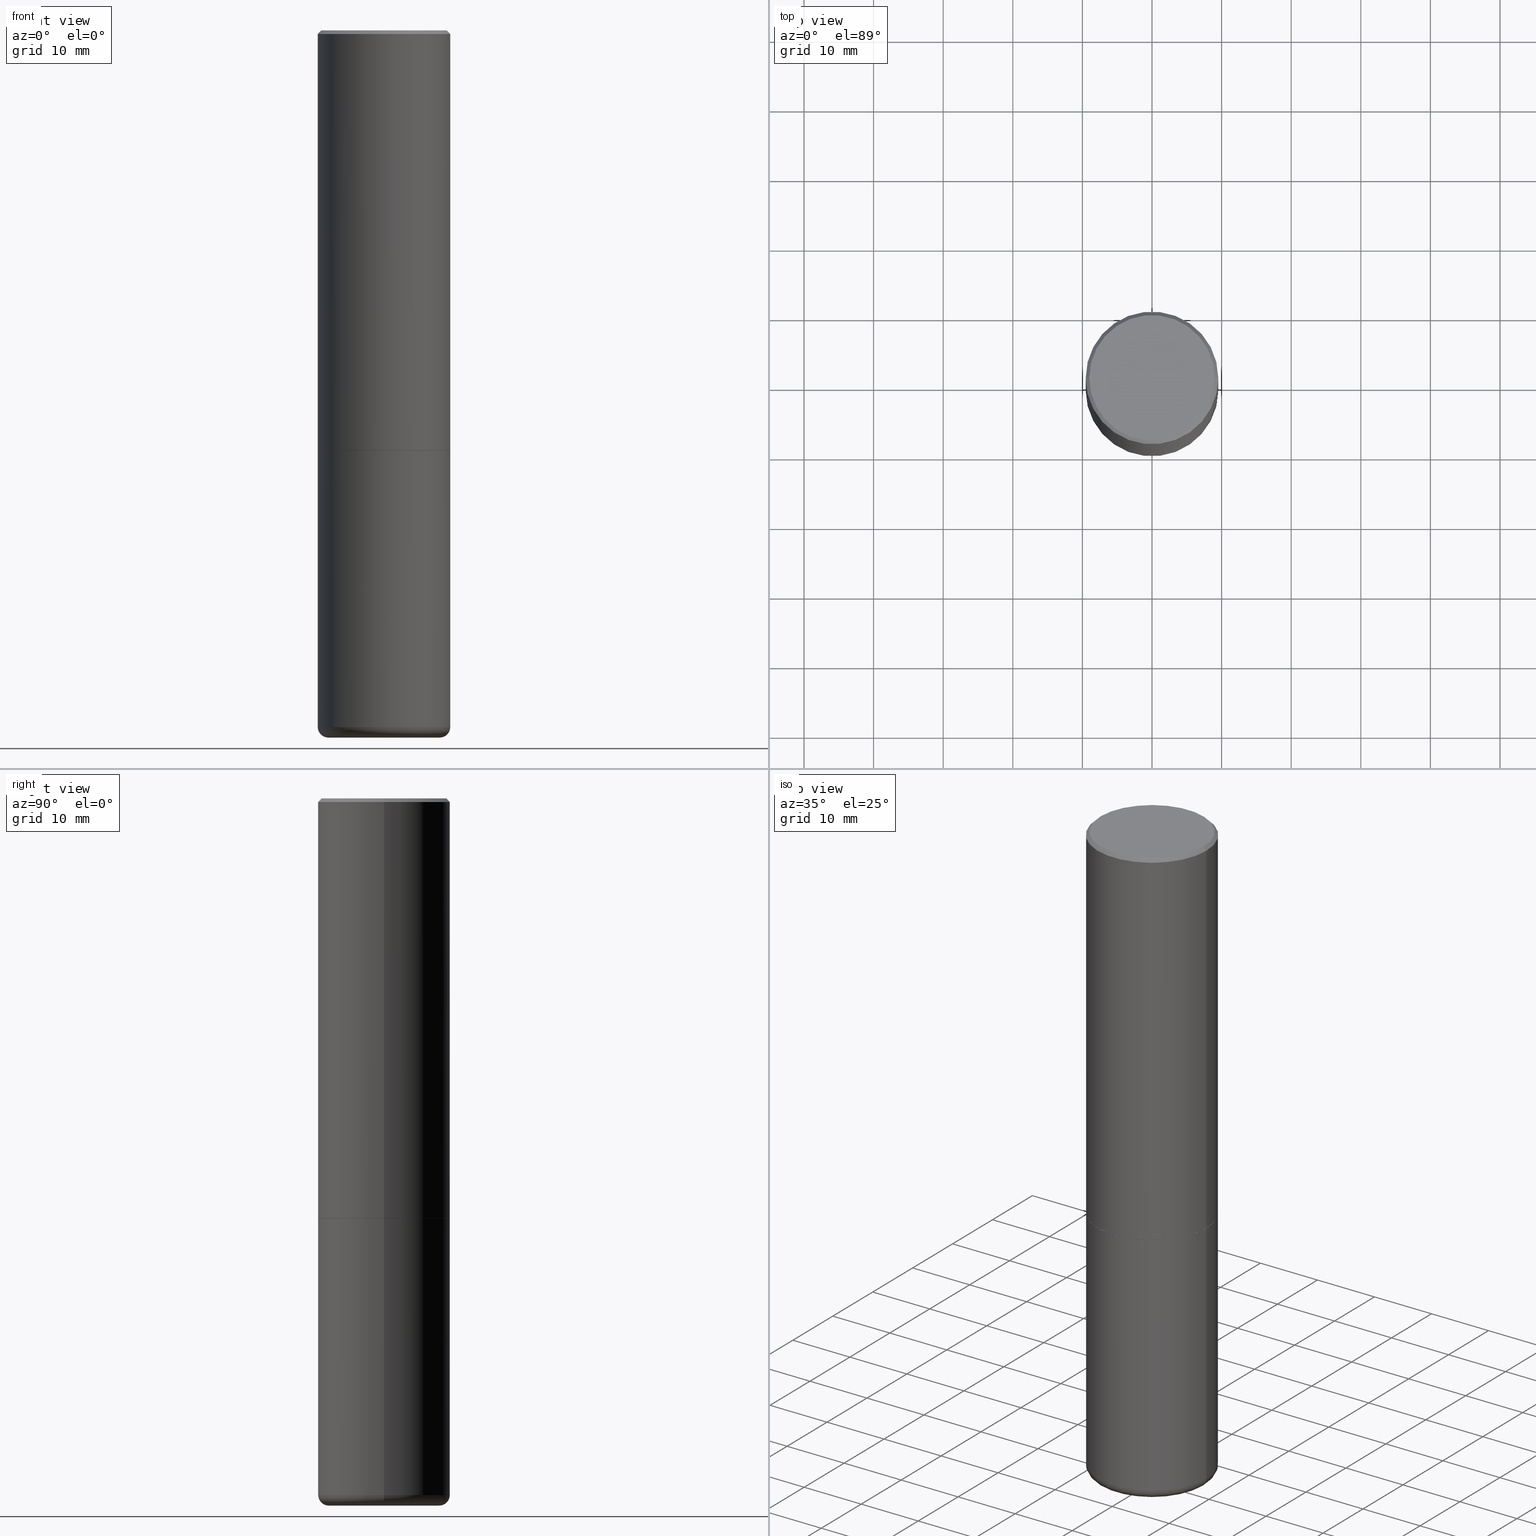
[diagram: canonical four-view strip — front | top / right | iso, engineering-drawing reading convention]
A machine part, canonical four-view strip (front | top / right | iso — engineering-drawing reading convention). The complete STEP part file that produces these views, byte-faithful:
ISO-10303-21;
HEADER;
FILE_DESCRIPTION (( 'STEP AP203' ),
    '1' );
FILE_NAME ('32585.STEP',
    '2022-04-26T19:38:53',
    ( '' ),
    ( '' ),
    'SwSTEP 2.0',
    'SolidWorks 2022',
    '' );
FILE_SCHEMA (( 'CONFIG_CONTROL_DESIGN' ));
ENDSEC;

DATA;
#1 = FACE_OUTER_BOUND ( 'NONE', #268, .T. ) ;
#2 = COORDINATED_UNIVERSAL_TIME_OFFSET ( 5, 0, .BEHIND. ) ;
#3 = DIRECTION ( 'NONE',  ( 1.000000000000000000, -6.982962677686266711E-15, 4.876176775795935793E-29 ) ) ;
#4 = CARTESIAN_POINT ( 'NONE',  ( 0.3139528556137644033, -1.611976638653431424E-14, -3.999990861709384227 ) ) ;
#5 = CARTESIAN_POINT ( 'NONE',  ( -0.3750000000000000555, -1.514767903494867141E-15, -2.373999999999999666 ) ) ;
#6 = EDGE_LOOP ( 'NONE', ( #191, #306, #263, #41 ) ) ;
#7 = CIRCLE ( 'NONE', #271, 0.3739999999999999991 ) ;
#8 = ADVANCED_FACE ( 'NONE', ( #274 ), #442, .T. ) ;
#9 = AXIS2_PLACEMENT_3D ( 'NONE', #178, #323, #290 ) ;
#10 = LINE ( 'NONE', #217, #375 ) ;
#11 = ORIENTED_EDGE ( 'NONE', *, *, #394, .F. ) ;
#12 = CARTESIAN_POINT ( 'NONE',  ( 0.3150000000000000577, -1.595606971851316740E-14, -3.939999999999999947 ) ) ;
#13 = CARTESIAN_POINT ( 'NONE',  ( -0.3749999999999998890, 2.664535259100374908E-15, -1.844600658845589038E-29 ) ) ;
#14 = CARTESIAN_POINT ( 'NONE',  ( 0.3750000000000000555, -1.090738770254597870E-14, -2.373999999999999666 ) ) ;
#15 = VERTEX_POINT ( 'NONE', #14 ) ;
#16 = VECTOR ( 'NONE', #318, 39.37007874015748143 ) ;
#17 = CARTESIAN_POINT ( 'NONE',  ( -0.3150000000000000577, -1.151822685739767881E-14, -3.939999999999999947 ) ) ;
#18 = ORIENTED_EDGE ( 'NONE', *, *, #125, .T. ) ;
#19 = DIRECTION ( 'NONE',  ( 0.7071067811864267805, -2.468850131080992517E-15, 0.7071067811866682540 ) ) ;
#20 = ORIENTED_EDGE ( 'NONE', *, *, #394, .T. ) ;
#21 = EDGE_LOOP ( 'NONE', ( #26, #334, #308 ) ) ;
#22 = VERTEX_POINT ( 'NONE', #54 ) ;
#23 = CARTESIAN_POINT ( 'NONE',  ( 4.890937612370293302E-31, -6.982962677686318726E-17, -0.02000000000000008021 ) ) ;
#24 = ORIENTED_EDGE ( 'NONE', *, *, #181, .F. ) ;
#25 = AXIS2_PLACEMENT_3D ( 'NONE', #220, #360, #352 ) ;
#26 = ORIENTED_EDGE ( 'NONE', *, *, #250, .F. ) ;
#27 = AXIS2_PLACEMENT_3D ( 'NONE', #165, #52, #85 ) ;
#28 = VERTEX_POINT ( 'NONE', #115 ) ;
#29 = VERTEX_POINT ( 'NONE', #152 ) ;
#30 = EDGE_CURVE ( 'NONE', #350, #402, #331, .T. ) ;
#31 = CARTESIAN_POINT ( 'NONE',  ( 5.807988414689700538E-29, -8.292268179752471696E-15, -2.375000000000000000 ) ) ;
#32 = APPROVAL_DATE_TIME ( #48, #332 ) ;
#33 = DIRECTION ( 'NONE',  ( 1.000000000000000000, -6.982962677686268288E-15, 0.000000000000000000 ) ) ;
#34 = CARTESIAN_POINT ( 'NONE',  ( 0.3750000000000002220, -2.618611004132351594E-15, 1.828566290923477043E-29 ) ) ;
#35 = PERSON_AND_ORGANIZATION_ROLE ( 'creator' ) ;
#36 = EDGE_CURVE ( 'NONE', #434, #163, #226, .T. ) ;
#37 = ADVANCED_FACE ( 'NONE', ( #396 ), #218, .T. ) ;
#38 = DIRECTION ( 'NONE',  ( -1.000000000000000000, 6.982962677686265922E-15, 0.000000000000000000 ) ) ;
#39 = EDGE_LOOP ( 'NONE', ( #51, #429, #96, #188 ) ) ;
#40 = FACE_OUTER_BOUND ( 'NONE', #254, .T. ) ;
#41 = ORIENTED_EDGE ( 'NONE', *, *, #203, .F. ) ;
#42 = AXIS2_PLACEMENT_3D ( 'NONE', #368, #400, #329 ) ;
#43 = CARTESIAN_POINT ( 'NONE',  ( 0.3739999999999999991, -1.090389622120713570E-14, -2.375000000000000000 ) ) ;
#44 = DIRECTION ( 'NONE',  ( -2.445468806185136597E-29, 3.491481338843145583E-15, 1.000000000000000000 ) ) ;
#45 = FACE_OUTER_BOUND ( 'NONE', #427, .T. ) ;
#46 = DIMENSIONAL_EXPONENTS ( 1.000000000000000000, 0.000000000000000000, 0.000000000000000000, 0.000000000000000000, 0.000000000000000000, 0.000000000000000000, 0.000000000000000000 ) ;
#47 = DIRECTION ( 'NONE',  ( -6.982962677686266711E-15, -1.000000000000000000, 3.491481338843145583E-15 ) ) ;
#48 = DATE_AND_TIME ( #287, #171 ) ;
#49 = PERSON_AND_ORGANIZATION ( #242, #101 ) ;
#50 = FACE_OUTER_BOUND ( 'NONE', #63, .T. ) ;
#51 = ORIENTED_EDGE ( 'NONE', *, *, #278, .T. ) ;
#52 = DIRECTION ( 'NONE',  ( -2.445468806185136597E-29, 3.491481338843145583E-15, 1.000000000000000000 ) ) ;
#53 = CIRCLE ( 'NONE', #310, 0.3549999999999997602 ) ;
#54 = CARTESIAN_POINT ( 'NONE',  ( -0.3549999999999997602, 2.513866563967053491E-15, 4.268512490082953109E-18 ) ) ;
#55 = CARTESIAN_POINT ( 'NONE',  ( 1.060467509993676374E-27, -1.514066551259075377E-13, -43.36458953438772568 ) ) ;
#56 = ORIENTED_EDGE ( 'NONE', *, *, #159, .F. ) ;
#57 = ADVANCED_FACE ( 'NONE', ( #223 ), #161, .T. ) ;
#58 = EDGE_CURVE ( 'NONE', #385, #327, #91, .T. ) ;
#59 = ORIENTED_EDGE ( 'NONE', *, *, #58, .F. ) ;
#60 = FACE_OUTER_BOUND ( 'NONE', #235, .T. ) ;
#61 = ORIENTED_EDGE ( 'NONE', *, *, #404, .F. ) ;
#62 = APPLICATION_CONTEXT ( 'configuration controlled 3d designs of mechanical parts and assemblies' ) ;
#63 = EDGE_LOOP ( 'NONE', ( #433, #83, #297, #59 ) ) ;
#64 = ORIENTED_EDGE ( 'NONE', *, *, #315, .T. ) ;
#65 = AXIS2_PLACEMENT_3D ( 'NONE', #316, #174, #3 ) ;
#66 = PRODUCT_DEFINITION_SHAPE ( 'NONE', 'NONE',  #313 ) ;
#67 = DIRECTION ( 'NONE',  ( 1.000000000000000000, -6.982962677686265133E-15, 0.000000000000000000 ) ) ;
#68 = LINE ( 'NONE', #247, #192 ) ;
#69 = LOCAL_TIME ( 15, 38, 53.00000000000000000, #119 ) ;
#70 = ADVANCED_FACE ( 'NONE', ( #60 ), #147, .T. ) ;
#71 = ADVANCED_FACE ( 'NONE', ( #199 ), #330, .F. ) ;
#72 = CALENDAR_DATE ( 2022, 26, 4 ) ;
#73 = DIRECTION ( 'NONE',  ( -2.445468806185136597E-29, 3.491481338843145583E-15, 1.000000000000000000 ) ) ;
#74 = VERTEX_POINT ( 'NONE', #269 ) ;
#75 = PLANE ( 'NONE',  #9 ) ;
#76 = APPLICATION_CONTEXT ( 'configuration controlled 3d designs of mechanical parts and assemblies' ) ;
#77 = EDGE_LOOP ( 'NONE', ( #307, #64 ) ) ;
#78 = CIRCLE ( 'NONE', #166, 0.3750000000000003886 ) ;
#79 = CARTESIAN_POINT ( 'NONE',  ( -0.3750000000000000555, -8.359817068296855580E-15, -2.375000000000000000 ) ) ;
#80 = PERSON_AND_ORGANIZATION ( #242, #101 ) ;
#81 = DIRECTION ( 'NONE',  ( -2.445468806185136877E-29, 3.491481338843145188E-15, 1.000000000000000000 ) ) ;
#82 = DIRECTION ( 'NONE',  ( -2.445468806185136597E-29, 3.491481338843145583E-15, 1.000000000000000000 ) ) ;
#83 = ORIENTED_EDGE ( 'NONE', *, *, #95, .T. ) ;
#84 = CARTESIAN_POINT ( 'NONE',  ( 9.635147096369438236E-29, -1.375643647504199401E-14, -3.939999999999999947 ) ) ;
#85 = DIRECTION ( 'NONE',  ( 1.000000000000000000, -6.982962677686266711E-15, 4.883557194083113462E-29 ) ) ;
#86 = DIRECTION ( 'NONE',  ( 1.000000000000000000, 0.000000000000000000, 0.000000000000000000 ) ) ;
#87 = CARTESIAN_POINT ( 'NONE',  ( 9.635147096369438236E-29, -1.375643647504199401E-14, -3.939999999999999947 ) ) ;
#88 = LENGTH_MEASURE_WITH_UNIT ( LENGTH_MEASURE( 0.02539999999999999897 ), #393 );
#89 = DIRECTION ( 'NONE',  ( -2.445468806185136597E-29, 3.491481338843145583E-15, 1.000000000000000000 ) ) ;
#90 = ORIENTED_EDGE ( 'NONE', *, *, #58, .T. ) ;
#91 = CIRCLE ( 'NONE', #435, 0.06000000000000031697 ) ;
#92 = APPROVAL_PERSON_ORGANIZATION ( #244, #332, #389 ) ;
#93 = CARTESIAN_POINT ( 'NONE',  ( 2.478951750578623026E-15, 0.3549999999999997602, -1.237341619044265638E-15 ) ) ;
#94 = ADVANCED_FACE ( 'NONE', ( #196 ), #230, .T. ) ;
#95 = EDGE_CURVE ( 'NONE', #163, #167, #142, .T. ) ;
#96 = ORIENTED_EDGE ( 'NONE', *, *, #416, .F. ) ;
#97 = EDGE_LOOP ( 'NONE', ( #270, #354, #225, #335 ) ) ;
#98 = VERTEX_POINT ( 'NONE', #388 ) ;
#99 = ORIENTED_EDGE ( 'NONE', *, *, #172, .F. ) ;
#100 = CC_DESIGN_PERSON_AND_ORGANIZATION_ASSIGNMENT ( #417, #112, ( #179 ) ) ;
#101 = ORGANIZATION ( 'UNSPECIFIED', 'UNSPECIFIED', '' ) ;
#102 = DIRECTION ( 'NONE',  ( 1.000000000000000000, -6.982962677686268288E-15, 0.000000000000000000 ) ) ;
#103 = ADVANCED_FACE ( 'NONE', ( #362 ), #397, .F. ) ;
#104 = CIRCLE ( 'NONE', #387, 0.3750000000000000555 ) ;
#105 = DIRECTION ( 'NONE',  ( -2.445468806185136597E-29, 3.491481338843145583E-15, 1.000000000000000000 ) ) ;
#106 = LOCAL_TIME ( 15, 38, 53.00000000000000000, #2 ) ;
#107 = CIRCLE ( 'NONE', #439, 0.3139528556137635151 ) ;
#108 = PERSON_AND_ORGANIZATION_ROLE ( 'creator' ) ;
#109 = DATE_TIME_ROLE ( 'classification_date' ) ;
#110 = CARTESIAN_POINT ( 'NONE',  ( 0.3750000000000003886, -1.637504747917434719E-14, -3.939999999999999947 ) ) ;
#111 = ORIENTED_EDGE ( 'NONE', *, *, #95, .F. ) ;
#112 = PERSON_AND_ORGANIZATION_ROLE ( 'classification_officer' ) ;
#113 = CARTESIAN_POINT ( 'NONE',  ( -0.3750000000000002220, 2.664535259100377275E-15, -1.844600658845590719E-29 ) ) ;
#114 = CARTESIAN_POINT ( 'NONE',  ( 5.807988414689700538E-29, -8.292268179752471696E-15, -2.375000000000000000 ) ) ;
#115 = CARTESIAN_POINT ( 'NONE',  ( -0.3749999999999997780, 2.548781377355484746E-15, -0.02000000000000008021 ) ) ;
#116 = PERSON_AND_ORGANIZATION_ROLE ( 'design_owner' ) ;
#117 = DIRECTION ( 'NONE',  ( 2.445468806185136597E-29, -3.491481338843145583E-15, -1.000000000000000000 ) ) ;
#118 = DIRECTION ( 'NONE',  ( 1.000000000000000000, -6.982962677686266711E-15, 4.876176775795935793E-29 ) ) ;
#119 = COORDINATED_UNIVERSAL_TIME_OFFSET ( 5, 0, .BEHIND. ) ;
#120 = DIRECTION ( 'NONE',  ( 1.000000000000000000, -6.982962677686266711E-15, 0.000000000000000000 ) ) ;
#121 = VERTEX_POINT ( 'NONE', #79 ) ;
#122 = DIRECTION ( 'NONE',  ( 1.000000000000000000, -6.982962677686265922E-15, 0.000000000000000000 ) ) ;
#123 = DIRECTION ( 'NONE',  ( 0.7071067811865459074, -7.319954787623251312E-15, -0.7071067811865492381 ) ) ;
#124 =( CONVERSION_BASED_UNIT ( 'INCH', #88 ) LENGTH_UNIT ( ) NAMED_UNIT ( #46 ) );
#125 = EDGE_CURVE ( 'NONE', #74, #162, #298, .T. ) ;
#126 = DIRECTION ( 'NONE',  ( 7.105427357601001859E-15, 1.000000000000000000, -3.491481338843145583E-15 ) ) ;
#127 = CONICAL_SURFACE ( 'NONE', #134, 0.3749999999999997780, 0.7853981633974459475 ) ;
#128 = DIRECTION ( 'NONE',  ( 1.000000000000000000, -6.982962677686263555E-15, 0.000000000000000000 ) ) ;
#129 = ORIENTED_EDGE ( 'NONE', *, *, #172, .T. ) ;
#130 = PRODUCT ( '32585', '32585', '', ( #363 ) ) ;
#131 = VECTOR ( 'NONE', #421, 39.37007874015748143 ) ;
#132 = CLOSED_SHELL ( 'NONE', ( #190, #311, #103, #367, #37, #57, #438 ) ) ;
#133 = EDGE_CURVE ( 'NONE', #28, #162, #139, .T. ) ;
#134 = AXIS2_PLACEMENT_3D ( 'NONE', #384, #117, #293 ) ;
#135 = APPROVAL_ROLE ( '' ) ;
#136 = FACE_OUTER_BOUND ( 'NONE', #39, .T. ) ;
#137 = DIRECTION ( 'NONE',  ( -2.445468806185136597E-29, 3.491481338843145583E-15, 1.000000000000000000 ) ) ;
#138 = CALENDAR_DATE ( 2022, 26, 4 ) ;
#139 = CIRCLE ( 'NONE', #341, 0.3749999999999997780 ) ;
#140 = CC_DESIGN_SECURITY_CLASSIFICATION ( #179, ( #441 ) ) ;
#141 = ORIENTED_EDGE ( 'NONE', *, *, #326, .F. ) ;
#142 = CIRCLE ( 'NONE', #285, 0.06000000000000031697 ) ;
#143 = SECURITY_CLASSIFICATION_LEVEL ( 'unclassified' ) ;
#144 = LINE ( 'NONE', #113, #431 ) ;
#145 = CARTESIAN_POINT ( 'NONE',  ( 4.890937612370293302E-31, -6.982962677686318726E-17, -0.02000000000000008021 ) ) ;
#146 = CC_DESIGN_DATE_AND_TIME_ASSIGNMENT ( #177, #355, ( #313 ) ) ;
#147 = CYLINDRICAL_SURFACE ( 'NONE', #246, 0.3749999999999998890 ) ;
#148 = APPROVAL_STATUS ( 'not_yet_approved' ) ;
#149 = APPLICATION_PROTOCOL_DEFINITION ( 'international standard', 'config_control_design', 1994, #76 ) ;
#150 = DIRECTION ( 'NONE',  ( 1.000000000000000000, -6.982962677686265133E-15, 0.000000000000000000 ) ) ;
#151 = DIRECTION ( 'NONE',  ( 1.000000000000000000, -6.982962677686268288E-15, 0.000000000000000000 ) ) ;
#152 = CARTESIAN_POINT ( 'NONE',  ( 0.3739999999999999991, -1.090389622120713570E-14, -2.375000000000000000 ) ) ;
#153 = APPLICATION_PROTOCOL_DEFINITION ( 'international standard', 'config_control_design', 1994, #62 ) ;
#154 = DIRECTION ( 'NONE',  ( 2.445468806185136597E-29, -3.491481338843145583E-15, -1.000000000000000000 ) ) ;
#155 = AXIS2_PLACEMENT_3D ( 'NONE', #114, #73, #294 ) ;
#156 = DIRECTION ( 'NONE',  ( 2.445468806185136597E-29, -3.491481338843145583E-15, -1.000000000000000000 ) ) ;
#157 = ORIENTED_EDGE ( 'NONE', *, *, #159, .T. ) ;
#158 = CC_DESIGN_PERSON_AND_ORGANIZATION_ASSIGNMENT ( #185, #108, ( #441 ) ) ;
#159 = EDGE_CURVE ( 'NONE', #29, #350, #413, .T. ) ;
#160 = CARTESIAN_POINT ( 'NONE',  ( 9.768309151834167291E-29, -1.394696380848847214E-14, -3.994510794230248685 ) ) ;
#161 = CYLINDRICAL_SURFACE ( 'NONE', #343, 0.3750000000000002220 ) ;
#162 = VERTEX_POINT ( 'NONE', #411 ) ;
#163 = VERTEX_POINT ( 'NONE', #245 ) ;
#164 =( NAMED_UNIT ( * ) PLANE_ANGLE_UNIT ( ) SI_UNIT ( $, .RADIAN. ) );
#165 = CARTESIAN_POINT ( 'NONE',  ( 9.635147096369438236E-29, -1.375643647504199401E-14, -3.939999999999999947 ) ) ;
#166 = AXIS2_PLACEMENT_3D ( 'NONE', #357, #44, #325 ) ;
#167 = VERTEX_POINT ( 'NONE', #210 ) ;
#168 = ORIENTED_EDGE ( 'NONE', *, *, #301, .T. ) ;
#169 = ORIENTED_EDGE ( 'NONE', *, *, #36, .F. ) ;
#170 = AXIS2_PLACEMENT_3D ( 'NONE', #428, #423, #118 ) ;
#171 = LOCAL_TIME ( 15, 38, 53.00000000000000000, #317 ) ;
#172 = EDGE_CURVE ( 'NONE', #74, #22, #53, .T. ) ;
#173 = CIRCLE ( 'NONE', #42, 0.3750000000000000555 ) ;
#174 = DIRECTION ( 'NONE',  ( -2.445468806185136597E-29, 3.491481338843145583E-15, 1.000000000000000000 ) ) ;
#175 = DIRECTION ( 'NONE',  ( -2.445468806185136877E-29, 3.491481338843145188E-15, 1.000000000000000000 ) ) ;
#176 = CARTESIAN_POINT ( 'NONE',  ( -0.3749999999999997780, 2.548781377355484746E-15, -0.02000000000000008021 ) ) ;
#177 = DATE_AND_TIME ( #138, #376 ) ;
#178 = CARTESIAN_POINT ( 'NONE',  ( 5.807988414689700538E-29, -8.292268179752471696E-15, -2.375000000000000000 ) ) ;
#179 = SECURITY_CLASSIFICATION ( '', '', #143 ) ;
#180 = ORIENTED_EDGE ( 'NONE', *, *, #374, .T. ) ;
#181 = EDGE_CURVE ( 'NONE', #350, #29, #7, .T. ) ;
#182 = CALENDAR_DATE ( 2022, 26, 4 ) ;
#183 = LINE ( 'NONE', #13, #409 ) ;
#184 = DIRECTION ( 'NONE',  ( 2.445468806185136597E-29, -3.491481338843145583E-15, -1.000000000000000000 ) ) ;
#185 = PERSON_AND_ORGANIZATION ( #242, #101 ) ;
#186 = APPROVAL_ROLE ( '' ) ;
#187 = DIRECTION ( 'NONE',  ( 1.000000000000000000, -6.982962677686266711E-15, 4.883557194083113462E-29 ) ) ;
#188 = ORIENTED_EDGE ( 'NONE', *, *, #374, .F. ) ;
#189 = DIRECTION ( 'NONE',  ( 2.438088387897960049E-29, -3.491481338843145188E-15, -1.000000000000000000 ) ) ;
#190 = ADVANCED_FACE ( 'NONE', ( #136 ), #243, .T. ) ;
#191 = ORIENTED_EDGE ( 'NONE', *, *, #30, .F. ) ;
#192 = VECTOR ( 'NONE', #412, 39.37007874015748143 ) ;
#193 = CIRCLE ( 'NONE', #229, 0.3750000000000000555 ) ;
#194 = CARTESIAN_POINT ( 'NONE',  ( -0.3739999999999999991, -5.634838348009696218E-15, -2.375000000000000000 ) ) ;
#195 = DIRECTION ( 'NONE',  ( -1.000000000000000000, 6.982962677686265922E-15, -4.876176775795935793E-29 ) ) ;
#196 = FACE_OUTER_BOUND ( 'NONE', #97, .T. ) ;
#197 = ORIENTED_EDGE ( 'NONE', *, *, #319, .T. ) ;
#198 = CARTESIAN_POINT ( 'NONE',  ( 2.618611004132408392E-15, 0.3749999999999917843, -2.375000000000001332 ) ) ;
#199 = FACE_OUTER_BOUND ( 'NONE', #420, .T. ) ;
#200 = CIRCLE ( 'NONE', #381, 0.3749999999999997780 ) ;
#201 = CIRCLE ( 'NONE', #440, 0.3750000000000003886 ) ;
#202 = ORIENTED_EDGE ( 'NONE', *, *, #125, .F. ) ;
#203 = EDGE_CURVE ( 'NONE', #402, #15, #320, .T. ) ;
#204 = CIRCLE ( 'NONE', #280, 0.3139528556137635151 ) ;
#205 = DIRECTION ( 'NONE',  ( -2.445468806185136597E-29, 3.491481338843145583E-15, 1.000000000000000000 ) ) ;
#206 = CARTESIAN_POINT ( 'NONE',  ( 9.781852877335904150E-29, -1.396589344920142703E-14, -3.999990861709384227 ) ) ;
#207 = VECTOR ( 'NONE', #175, 39.37007874015748143 ) ;
#208 = CARTESIAN_POINT ( 'NONE',  ( -1.043851414335219820E-46, 1.490343170380447200E-32, 4.268512490100411279E-18 ) ) ;
#209 = APPROVAL_STATUS ( 'not_yet_approved' ) ;
#210 = CARTESIAN_POINT ( 'NONE',  ( -0.3750000000000003886, -1.109190121594161516E-14, -3.939999999999999947 ) ) ;
#211 = LINE ( 'NONE', #34, #207 ) ;
#212 = EDGE_CURVE ( 'NONE', #15, #162, #68, .T. ) ;
#213 = EDGE_CURVE ( 'NONE', #163, #385, #204, .T. ) ;
#214 = CARTESIAN_POINT ( 'NONE',  ( 9.781852877335904150E-29, -1.396589344920142703E-14, -3.999990861709384227 ) ) ;
#215 = ADVANCED_FACE ( 'NONE', ( #1 ), #127, .T. ) ;
#216 = CIRCLE ( 'NONE', #25, 0.3549999999999997602 ) ;
#217 = CARTESIAN_POINT ( 'NONE',  ( 2.039126261454624863E-19, -1.394675989586242561E-14, -3.994510794230248685 ) ) ;
#218 = TOROIDAL_SURFACE ( 'NONE', #27, 0.3150000000000000577, 0.06000000000000029615 ) ;
#219 = DIRECTION ( 'NONE',  ( -1.000000000000000000, 6.982962677686265922E-15, 0.000000000000000000 ) ) ;
#220 = CARTESIAN_POINT ( 'NONE',  ( -1.043851414335219820E-46, 1.490343170380447200E-32, 4.268512490100411279E-18 ) ) ;
#221 = EDGE_LOOP ( 'NONE', ( #403, #426, #180, #304 ) ) ;
#222 = DIRECTION ( 'NONE',  ( 2.438088387897960049E-29, -3.491481338843145188E-15, -1.000000000000000000 ) ) ;
#223 = FACE_OUTER_BOUND ( 'NONE', #221, .T. ) ;
#224 = CARTESIAN_POINT ( 'NONE',  ( 0.000000000000000000, 0.000000000000000000, 0.000000000000000000 ) ) ;
#225 = ORIENTED_EDGE ( 'NONE', *, *, #319, .F. ) ;
#226 = LINE ( 'NONE', #292, #410 ) ;
#227 = AXIS2_PLACEMENT_3D ( 'NONE', #31, #279, #102 ) ;
#228 = CLOSED_SHELL ( 'NONE', ( #333, #94, #8, #215, #70, #345, #239, #71 ) ) ;
#229 = AXIS2_PLACEMENT_3D ( 'NONE', #419, #82, #289 ) ;
#230 = CYLINDRICAL_SURFACE ( 'NONE', #170, 0.3749999999999998890 ) ;
#231 = ORIENTED_EDGE ( 'NONE', *, *, #212, .T. ) ;
#232 = ORIENTED_EDGE ( 'NONE', *, *, #30, .T. ) ;
#233 = PRODUCT_RELATED_PRODUCT_CATEGORY ( 'detail', '', ( #130 ) ) ;
#234 = CALENDAR_DATE ( 2022, 26, 4 ) ;
#235 = EDGE_LOOP ( 'NONE', ( #272, #236, #231, #300 ) ) ;
#236 = ORIENTED_EDGE ( 'NONE', *, *, #203, .T. ) ;
#237 = CC_DESIGN_PERSON_AND_ORGANIZATION_ASSIGNMENT ( #80, #116, ( #130 ) ) ;
#238 = EDGE_CURVE ( 'NONE', #385, #163, #107, .T. ) ;
#239 = ADVANCED_FACE ( 'NONE', ( #40 ), #75, .F. ) ;
#240 = AXIS2_PLACEMENT_3D ( 'NONE', #253, #386, #151 ) ;
#241 = DIRECTION ( 'NONE',  ( -2.445468806185136597E-29, 3.491481338843145583E-15, 1.000000000000000000 ) ) ;
#242 = PERSON ( 'UNSPECIFIED', 'UNSPECIFIED', 'UNSPECIFIED', ('UNSPECIFIED'), ('UNSPECIFIED'), ('UNSPECIFIED') ) ;
#243 = CYLINDRICAL_SURFACE ( 'NONE', #65, 0.3750000000000002220 ) ;
#244 = PERSON_AND_ORGANIZATION ( #242, #101 ) ;
#245 = CARTESIAN_POINT ( 'NONE',  ( -0.3139528556137644033, -1.177357237589748675E-14, -3.999990861709384227 ) ) ;
#246 = AXIS2_PLACEMENT_3D ( 'NONE', #261, #266, #256 ) ;
#247 = CARTESIAN_POINT ( 'NONE',  ( 0.3749999999999998890, -2.618611004132349228E-15, 1.828566290923475362E-29 ) ) ;
#248 = DIRECTION ( 'NONE',  ( 1.000000000000000000, -6.982962677686265922E-15, 0.000000000000000000 ) ) ;
#249 = CC_DESIGN_DATE_AND_TIME_ASSIGNMENT ( #364, #109, ( #179 ) ) ;
#250 = EDGE_CURVE ( 'NONE', #434, #385, #10, .T. ) ;
#251 = APPROVAL_DATE_TIME ( #288, #366 ) ;
#252 = DIRECTION ( 'NONE',  ( -2.445468806185136597E-29, 3.491481338843145583E-15, 1.000000000000000000 ) ) ;
#253 = CARTESIAN_POINT ( 'NONE',  ( 5.807988414689700538E-29, -8.292268179752471696E-15, -2.375000000000000000 ) ) ;
#254 = EDGE_LOOP ( 'NONE', ( #56, #24 ) ) ;
#255 = DIRECTION ( 'NONE',  ( -2.445468806185136597E-29, 3.491481338843145583E-15, 1.000000000000000000 ) ) ;
#256 = DIRECTION ( 'NONE',  ( 1.000000000000000000, -6.982962677686266711E-15, 4.876176775795935793E-29 ) ) ;
#257 = DIRECTION ( 'NONE',  ( 0.000000000000000000, 0.000000000000000000, 1.000000000000000000 ) ) ;
#258 = CARTESIAN_POINT ( 'NONE',  ( -0.3739999999999999991, -5.629539893661473027E-15, -2.375000000000000000 ) ) ;
#259 = APPROVAL_PERSON_ORGANIZATION ( #382, #366, #135 ) ;
#260 = FACE_OUTER_BOUND ( 'NONE', #77, .T. ) ;
#261 = CARTESIAN_POINT ( 'NONE',  ( 0.000000000000000000, 0.000000000000000000, 0.000000000000000000 ) ) ;
#262 = DATE_AND_TIME ( #182, #69 ) ;
#263 = ORIENTED_EDGE ( 'NONE', *, *, #404, .T. ) ;
#264 = PLANE ( 'NONE',  #277 ) ;
#265 = EDGE_CURVE ( 'NONE', #167, #121, #144, .T. ) ;
#266 = DIRECTION ( 'NONE',  ( -2.445468806185136597E-29, 3.491481338843145583E-15, 1.000000000000000000 ) ) ;
#267 = COORDINATED_UNIVERSAL_TIME_OFFSET ( 5, 0, .BEHIND. ) ;
#268 = EDGE_LOOP ( 'NONE', ( #202, #370, #20, #302 ) ) ;
#269 = CARTESIAN_POINT ( 'NONE',  ( 0.3549999999999997602, -2.538996582575039076E-15, 4.268512490117958041E-18 ) ) ;
#270 = ORIENTED_EDGE ( 'NONE', *, *, #326, .T. ) ;
#271 = AXIS2_PLACEMENT_3D ( 'NONE', #408, #241, #33 ) ;
#272 = ORIENTED_EDGE ( 'NONE', *, *, #283, .F. ) ;
#273 = DIRECTION ( 'NONE',  ( -2.445468806185136597E-29, 3.491481338843145583E-15, 1.000000000000000000 ) ) ;
#274 = FACE_OUTER_BOUND ( 'NONE', #309, .T. ) ;
#275 = ORIENTED_EDGE ( 'NONE', *, *, #213, .T. ) ;
#276 = ORIENTED_EDGE ( 'NONE', *, *, #405, .F. ) ;
#277 = AXIS2_PLACEMENT_3D ( 'NONE', #198, #222, #195 ) ;
#278 = EDGE_CURVE ( 'NONE', #327, #167, #78, .T. ) ;
#279 = DIRECTION ( 'NONE',  ( -2.445468806185136597E-29, 3.491481338843145583E-15, 1.000000000000000000 ) ) ;
#280 = AXIS2_PLACEMENT_3D ( 'NONE', #206, #105, #67 ) ;
#281 = DESIGN_CONTEXT ( 'detailed design', #62, 'design' ) ;
#282 = SHAPE_DEFINITION_REPRESENTATION ( #66, #379 ) ;
#283 = EDGE_CURVE ( 'NONE', #402, #28, #183, .T. ) ;
#284 = LINE ( 'NONE', #43, #321 ) ;
#285 = AXIS2_PLACEMENT_3D ( 'NONE', #17, #126, #369 ) ;
#286 =( GEOMETRIC_REPRESENTATION_CONTEXT ( 3 ) GLOBAL_UNCERTAINTY_ASSIGNED_CONTEXT ( ( #348 ) ) GLOBAL_UNIT_ASSIGNED_CONTEXT ( ( #124, #164, #336 ) ) REPRESENTATION_CONTEXT ( 'NONE', 'WORKASPACE' ) );
#287 = CALENDAR_DATE ( 2022, 26, 4 ) ;
#288 = DATE_AND_TIME ( #72, #106 ) ;
#289 = DIRECTION ( 'NONE',  ( 1.000000000000000000, -6.982962677686266711E-15, 0.000000000000000000 ) ) ;
#290 = DIRECTION ( 'NONE',  ( 1.000000000000000000, -6.982962677686265922E-15, 4.876176775795935793E-29 ) ) ;
#291 = DIRECTION ( 'NONE',  ( -2.445468806185136597E-29, 3.491481338843145583E-15, 1.000000000000000000 ) ) ;
#292 = CARTESIAN_POINT ( 'NONE',  ( -2.039126259500934565E-19, -1.394675989586242561E-14, -3.994510794230248685 ) ) ;
#293 = DIRECTION ( 'NONE',  ( -1.000000000000000000, 6.982962677686265922E-15, 0.000000000000000000 ) ) ;
#294 = DIRECTION ( 'NONE',  ( 1.000000000000000000, -6.982962677686268288E-15, 0.000000000000000000 ) ) ;
#295 = APPROVAL_STATUS ( 'not_yet_approved' ) ;
#296 = APPROVAL_PERSON_ORGANIZATION ( #49, #415, #186 ) ;
#297 = ORIENTED_EDGE ( 'NONE', *, *, #278, .F. ) ;
#298 = LINE ( 'NONE', #425, #380 ) ;
#299 = CARTESIAN_POINT ( 'NONE',  ( 0.000000000000000000, 0.000000000000000000, 0.000000000000000000 ) ) ;
#300 = ORIENTED_EDGE ( 'NONE', *, *, #133, .F. ) ;
#301 = EDGE_CURVE ( 'NONE', #22, #74, #216, .T. ) ;
#302 = ORIENTED_EDGE ( 'NONE', *, *, #133, .T. ) ;
#303 = AXIS2_PLACEMENT_3D ( 'NONE', #93, #189, #391 ) ;
#304 = ORIENTED_EDGE ( 'NONE', *, *, #315, .F. ) ;
#305 = AXIS2_PLACEMENT_3D ( 'NONE', #23, #184, #219 ) ;
#306 = ORIENTED_EDGE ( 'NONE', *, *, #181, .T. ) ;
#307 = ORIENTED_EDGE ( 'NONE', *, *, #416, .T. ) ;
#308 = ORIENTED_EDGE ( 'NONE', *, *, #238, .F. ) ;
#309 = EDGE_LOOP ( 'NONE', ( #99, #18, #197, #11 ) ) ;
#310 = AXIS2_PLACEMENT_3D ( 'NONE', #208, #252, #344 ) ;
#311 = ADVANCED_FACE ( 'NONE', ( #50 ), #338, .T. ) ;
#312 = AXIS2_PLACEMENT_3D ( 'NONE', #324, #154, #38 ) ;
#313 = PRODUCT_DEFINITION ( 'UNKNOWN', '', #441, #281 ) ;
#314 = PERSON_AND_ORGANIZATION ( #242, #101 ) ;
#315 = EDGE_CURVE ( 'NONE', #121, #98, #104, .T. ) ;
#316 = CARTESIAN_POINT ( 'NONE',  ( 0.000000000000000000, 0.000000000000000000, 0.000000000000000000 ) ) ;
#317 = COORDINATED_UNIVERSAL_TIME_OFFSET ( 5, 0, .BEHIND. ) ;
#318 = DIRECTION ( 'NONE',  ( -0.7071067811865459074, 2.468850131082239706E-15, -0.7071067811865492381 ) ) ;
#319 = EDGE_CURVE ( 'NONE', #162, #28, #200, .T. ) ;
#320 = CIRCLE ( 'NONE', #365, 0.3750000000000000555 ) ;
#321 = VECTOR ( 'NONE', #19, 39.37007874015748143 ) ;
#322 = PERSON_AND_ORGANIZATION_ROLE ( 'design_supplier' ) ;
#323 = DIRECTION ( 'NONE',  ( -2.438088387897960049E-29, 3.491481338843145188E-15, 1.000000000000000000 ) ) ;
#324 = CARTESIAN_POINT ( 'NONE',  ( 1.060467509993676374E-27, -1.514066551259075377E-13, -43.36458953438772568 ) ) ;
#325 = DIRECTION ( 'NONE',  ( 1.000000000000000000, -6.982962677686265922E-15, 0.000000000000000000 ) ) ;
#326 = EDGE_CURVE ( 'NONE', #15, #402, #193, .T. ) ;
#327 = VERTEX_POINT ( 'NONE', #110 ) ;
#328 = FACE_OUTER_BOUND ( 'NONE', #21, .T. ) ;
#329 = DIRECTION ( 'NONE',  ( 1.000000000000000000, -6.982962677686266711E-15, 0.000000000000000000 ) ) ;
#330 = PLANE ( 'NONE',  #303 ) ;
#331 = LINE ( 'NONE', #194, #131 ) ;
#332 = APPROVAL ( #148, 'UNSPECIFIED' ) ;
#333 = ADVANCED_FACE ( 'NONE', ( #45 ), #432, .T. ) ;
#334 = ORIENTED_EDGE ( 'NONE', *, *, #36, .T. ) ;
#335 = ORIENTED_EDGE ( 'NONE', *, *, #212, .F. ) ;
#336 =( NAMED_UNIT ( * ) SI_UNIT ( $, .STERADIAN. ) SOLID_ANGLE_UNIT ( ) );
#337 = EDGE_LOOP ( 'NONE', ( #169, #392, #340 ) ) ;
#338 = TOROIDAL_SURFACE ( 'NONE', #414, 0.3150000000000000577, 0.06000000000000029615 ) ;
#339 = CC_DESIGN_APPROVAL ( #415, ( #313 ) ) ;
#340 = ORIENTED_EDGE ( 'NONE', *, *, #213, .F. ) ;
#341 = AXIS2_PLACEMENT_3D ( 'NONE', #395, #89, #378 ) ;
#342 = CC_DESIGN_APPROVAL ( #366, ( #179 ) ) ;
#343 = AXIS2_PLACEMENT_3D ( 'NONE', #299, #359, #430 ) ;
#344 = DIRECTION ( 'NONE',  ( 1.000000000000000000, -6.982962677686266711E-15, 4.876231632511991546E-29 ) ) ;
#345 = ADVANCED_FACE ( 'NONE', ( #383 ), #373, .T. ) ;
#346 = DIRECTION ( 'NONE',  ( 1.000000000000000000, -6.982962677686266711E-15, 0.000000000000000000 ) ) ;
#347 = CONICAL_SURFACE ( 'NONE', #312, 2255.510300424391971, 1.553343034274959455 ) ;
#348 = UNCERTAINTY_MEASURE_WITH_UNIT (LENGTH_MEASURE( 1.000000000000000082E-05 ), #124, 'distance_accuracy_value', 'NONE');
#349 = LINE ( 'NONE', #176, #16 ) ;
#350 = VERTEX_POINT ( 'NONE', #258 ) ;
#351 = COORDINATED_UNIVERSAL_TIME_OFFSET ( 5, 0, .BEHIND. ) ;
#352 = DIRECTION ( 'NONE',  ( 1.000000000000000000, -6.982962677686266711E-15, 4.876231632511991546E-29 ) ) ;
#353 = DIRECTION ( 'NONE',  ( -2.445468806185136597E-29, 3.491481338843145583E-15, 1.000000000000000000 ) ) ;
#354 = ORIENTED_EDGE ( 'NONE', *, *, #283, .T. ) ;
#355 = DATE_TIME_ROLE ( 'creation_date' ) ;
#356 = PERSON_AND_ORGANIZATION ( #242, #101 ) ;
#357 = CARTESIAN_POINT ( 'NONE',  ( 9.635147096369438236E-29, -1.375643647504199401E-14, -3.939999999999999947 ) ) ;
#358 = CC_DESIGN_PERSON_AND_ORGANIZATION_ASSIGNMENT ( #356, #35, ( #313 ) ) ;
#359 = DIRECTION ( 'NONE',  ( -2.445468806185136597E-29, 3.491481338843145583E-15, 1.000000000000000000 ) ) ;
#360 = DIRECTION ( 'NONE',  ( -2.445468806185136597E-29, 3.491481338843145583E-15, 1.000000000000000000 ) ) ;
#361 = CARTESIAN_POINT ( 'NONE',  ( 5.807988414689699417E-29, -8.292268179752470118E-15, -2.375000000000000000 ) ) ;
#362 = FACE_OUTER_BOUND ( 'NONE', #337, .T. ) ;
#363 = MECHANICAL_CONTEXT ( 'NONE', #76, 'mechanical' ) ;
#364 = DATE_AND_TIME ( #234, #398 ) ;
#365 = AXIS2_PLACEMENT_3D ( 'NONE', #377, #205, #346 ) ;
#366 = APPROVAL ( #209, 'UNSPECIFIED' ) ;
#367 = ADVANCED_FACE ( 'NONE', ( #328 ), #347, .F. ) ;
#368 = CARTESIAN_POINT ( 'NONE',  ( 5.807988414689699417E-29, -8.292268179752470118E-15, -2.375000000000000000 ) ) ;
#369 = DIRECTION ( 'NONE',  ( -1.000000000000000000, 7.105427357600985293E-15, 0.000000000000000000 ) ) ;
#370 = ORIENTED_EDGE ( 'NONE', *, *, #301, .F. ) ;
#371 = DIRECTION ( 'NONE',  ( -0.9998476951563912696, 6.920964387254056788E-15, -0.01745240643727738114 ) ) ;
#372 = EDGE_LOOP ( 'NONE', ( #111, #275, #90, #276 ) ) ;
#373 = CONICAL_SURFACE ( 'NONE', #155, 0.3739999999999999991, 0.7853981633972775267 ) ;
#374 = EDGE_CURVE ( 'NONE', #327, #98, #211, .T. ) ;
#375 = VECTOR ( 'NONE', #390, 39.37007874015748143 ) ;
#376 = LOCAL_TIME ( 15, 38, 53.00000000000000000, #351 ) ;
#377 = CARTESIAN_POINT ( 'NONE',  ( 5.805542945883513814E-29, -8.288776698413627111E-15, -2.373999999999999666 ) ) ;
#378 = DIRECTION ( 'NONE',  ( 1.000000000000000000, -6.982962677686265922E-15, 0.000000000000000000 ) ) ;
#379 = ADVANCED_BREP_SHAPE_REPRESENTATION ( '32585', ( #407, #406, #422 ), #286 ) ;
#380 = VECTOR ( 'NONE', #123, 39.37007874015748143 ) ;
#381 = AXIS2_PLACEMENT_3D ( 'NONE', #145, #291, #248 ) ;
#382 = PERSON_AND_ORGANIZATION ( #242, #101 ) ;
#383 = FACE_OUTER_BOUND ( 'NONE', #6, .T. ) ;
#384 = CARTESIAN_POINT ( 'NONE',  ( 4.890937612370293302E-31, -6.982962677686318726E-17, -0.02000000000000008021 ) ) ;
#385 = VERTEX_POINT ( 'NONE', #4 ) ;
#386 = DIRECTION ( 'NONE',  ( -2.445468806185136597E-29, 3.491481338843145583E-15, 1.000000000000000000 ) ) ;
#387 = AXIS2_PLACEMENT_3D ( 'NONE', #361, #137, #120 ) ;
#388 = CARTESIAN_POINT ( 'NONE',  ( 0.3750000000000000555, -1.091087918388482013E-14, -2.375000000000000000 ) ) ;
#389 = APPROVAL_ROLE ( '' ) ;
#390 = DIRECTION ( 'NONE',  ( 0.9998476951563912696, -6.920387862090563457E-15, -0.01745240643727738114 ) ) ;
#391 = DIRECTION ( 'NONE',  ( -1.000000000000000000, 6.982962677686265922E-15, -4.876176775795935793E-29 ) ) ;
#392 = ORIENTED_EDGE ( 'NONE', *, *, #250, .T. ) ;
#393 =( LENGTH_UNIT ( ) NAMED_UNIT ( * ) SI_UNIT ( $, .METRE. ) );
#394 = EDGE_CURVE ( 'NONE', #22, #28, #349, .T. ) ;
#395 = CARTESIAN_POINT ( 'NONE',  ( 4.890937612370293302E-31, -6.982962677686318726E-17, -0.02000000000000008021 ) ) ;
#396 = FACE_OUTER_BOUND ( 'NONE', #372, .T. ) ;
#397 = CONICAL_SURFACE ( 'NONE', #399, 2255.510300424391971, 1.553343034274959455 ) ;
#398 = LOCAL_TIME ( 15, 38, 53.00000000000000000, #267 ) ;
#399 = AXIS2_PLACEMENT_3D ( 'NONE', #55, #156, #401 ) ;
#400 = DIRECTION ( 'NONE',  ( -2.445468806185136597E-29, 3.491481338843145583E-15, 1.000000000000000000 ) ) ;
#401 = DIRECTION ( 'NONE',  ( -1.000000000000000000, 6.982962677686265922E-15, 0.000000000000000000 ) ) ;
#402 = VERTEX_POINT ( 'NONE', #5 ) ;
#403 = ORIENTED_EDGE ( 'NONE', *, *, #265, .F. ) ;
#404 = EDGE_CURVE ( 'NONE', #29, #15, #284, .T. ) ;
#405 = EDGE_CURVE ( 'NONE', #167, #327, #201, .T. ) ;
#406 = MANIFOLD_SOLID_BREP ( 'Body-Move/Copy2[2]', #228 ) ;
#407 = MANIFOLD_SOLID_BREP ( 'Body-Move/Copy2[1]', #132 ) ;
#408 = CARTESIAN_POINT ( 'NONE',  ( 5.807988414689700538E-29, -8.292268179752471696E-15, -2.375000000000000000 ) ) ;
#409 = VECTOR ( 'NONE', #81, 39.37007874015748143 ) ;
#410 = VECTOR ( 'NONE', #371, 39.37007874015748143 ) ;
#411 = CARTESIAN_POINT ( 'NONE',  ( 0.3749999999999997780, -2.642516375941186056E-15, -0.02000000000000008021 ) ) ;
#412 = DIRECTION ( 'NONE',  ( -2.445468806185136877E-29, 3.491481338843145188E-15, 1.000000000000000000 ) ) ;
#413 = CIRCLE ( 'NONE', #227, 0.3739999999999999991 ) ;
#414 = AXIS2_PLACEMENT_3D ( 'NONE', #87, #353, #187 ) ;
#415 = APPROVAL ( #295, 'UNSPECIFIED' ) ;
#416 = EDGE_CURVE ( 'NONE', #98, #121, #173, .T. ) ;
#417 = PERSON_AND_ORGANIZATION ( #242, #101 ) ;
#418 = DIRECTION ( 'NONE',  ( -2.445468806185136877E-29, 3.491481338843145188E-15, 1.000000000000000000 ) ) ;
#419 = CARTESIAN_POINT ( 'NONE',  ( 5.805542945883513814E-29, -8.288776698413627111E-15, -2.373999999999999666 ) ) ;
#420 = EDGE_LOOP ( 'NONE', ( #168, #129 ) ) ;
#421 = DIRECTION ( 'NONE',  ( -0.7071067811864267805, 7.493145998869918709E-15, 0.7071067811866682540 ) ) ;
#422 = AXIS2_PLACEMENT_3D ( 'NONE', #224, #257, #86 ) ;
#423 = DIRECTION ( 'NONE',  ( -2.445468806185136597E-29, 3.491481338843145583E-15, 1.000000000000000000 ) ) ;
#424 = APPROVAL_DATE_TIME ( #262, #415 ) ;
#425 = CARTESIAN_POINT ( 'NONE',  ( 0.3749999999999997780, -2.642516375941186056E-15, -0.02000000000000008021 ) ) ;
#426 = ORIENTED_EDGE ( 'NONE', *, *, #405, .T. ) ;
#427 = EDGE_LOOP ( 'NONE', ( #157, #232, #141, #61 ) ) ;
#428 = CARTESIAN_POINT ( 'NONE',  ( 0.000000000000000000, 0.000000000000000000, 0.000000000000000000 ) ) ;
#429 = ORIENTED_EDGE ( 'NONE', *, *, #265, .T. ) ;
#430 = DIRECTION ( 'NONE',  ( 1.000000000000000000, -6.982962677686266711E-15, 4.876176775795935793E-29 ) ) ;
#431 = VECTOR ( 'NONE', #418, 39.37007874015748143 ) ;
#432 = CONICAL_SURFACE ( 'NONE', #240, 0.3739999999999999991, 0.7853981633972775267 ) ;
#433 = ORIENTED_EDGE ( 'NONE', *, *, #238, .T. ) ;
#434 = VERTEX_POINT ( 'NONE', #160 ) ;
#435 = AXIS2_PLACEMENT_3D ( 'NONE', #12, #47, #128 ) ;
#436 = CC_DESIGN_APPROVAL ( #332, ( #441 ) ) ;
#437 = CC_DESIGN_PERSON_AND_ORGANIZATION_ASSIGNMENT ( #314, #322, ( #441 ) ) ;
#438 = ADVANCED_FACE ( 'NONE', ( #260 ), #264, .F. ) ;
#439 = AXIS2_PLACEMENT_3D ( 'NONE', #214, #255, #150 ) ;
#440 = AXIS2_PLACEMENT_3D ( 'NONE', #84, #273, #122 ) ;
#441 = PRODUCT_DEFINITION_FORMATION_WITH_SPECIFIED_SOURCE ( 'ANY', '', #130, .NOT_KNOWN. ) ;
#442 = CONICAL_SURFACE ( 'NONE', #305, 0.3749999999999997780, 0.7853981633974459475 ) ;
ENDSEC;
END-ISO-10303-21;
